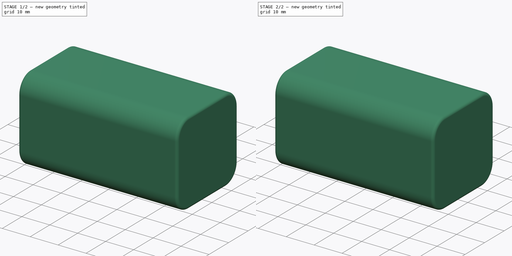
[diagram: build sequence overview — one tinted view per stage of 2, left to right]
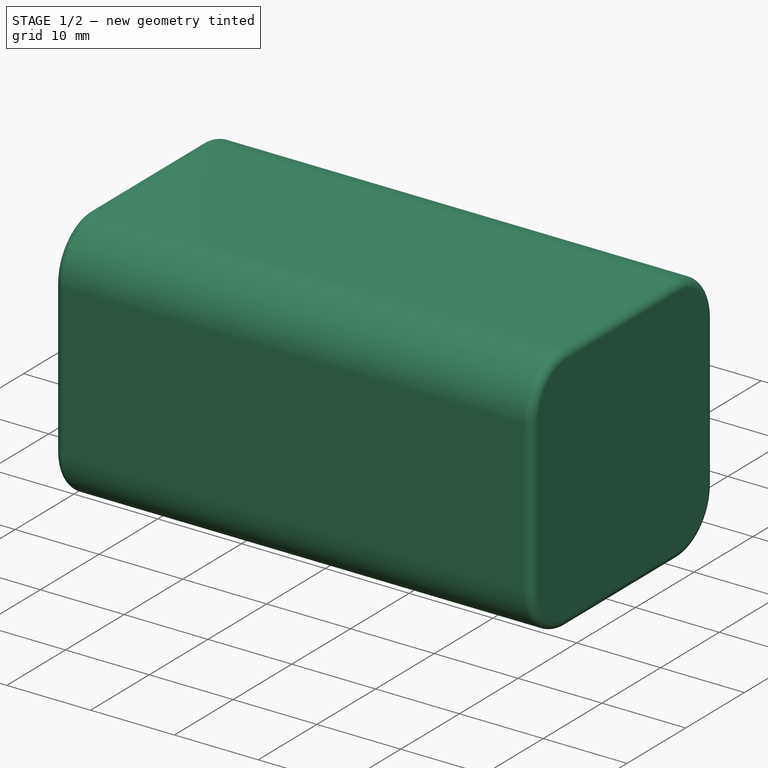
[diagram: stage 1 of 2 — iso view after this stage's code; geometry added in this stage tinted green]
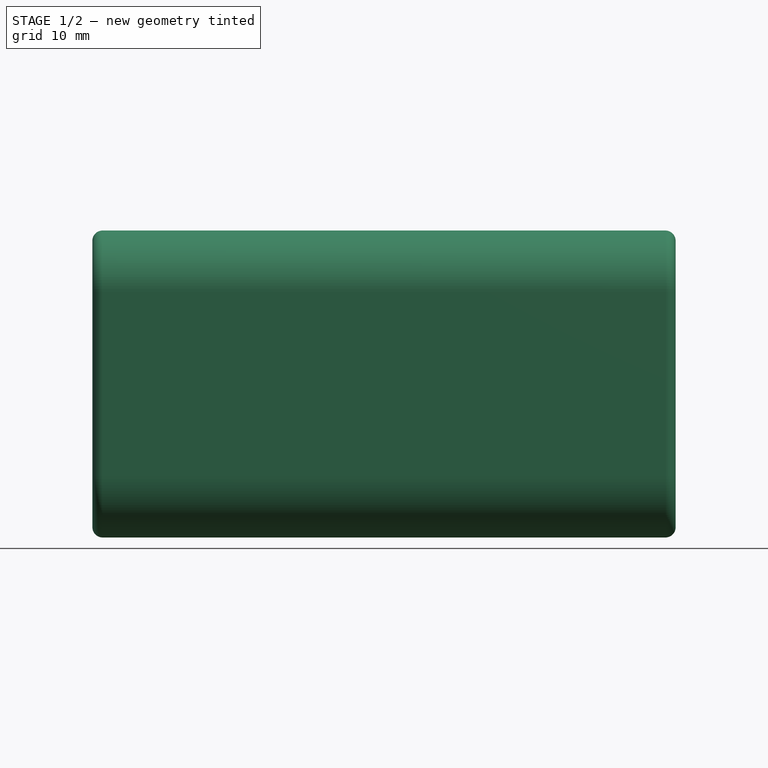
[diagram: stage 1 of 2 — front view after this stage's code; geometry added in this stage tinted green]
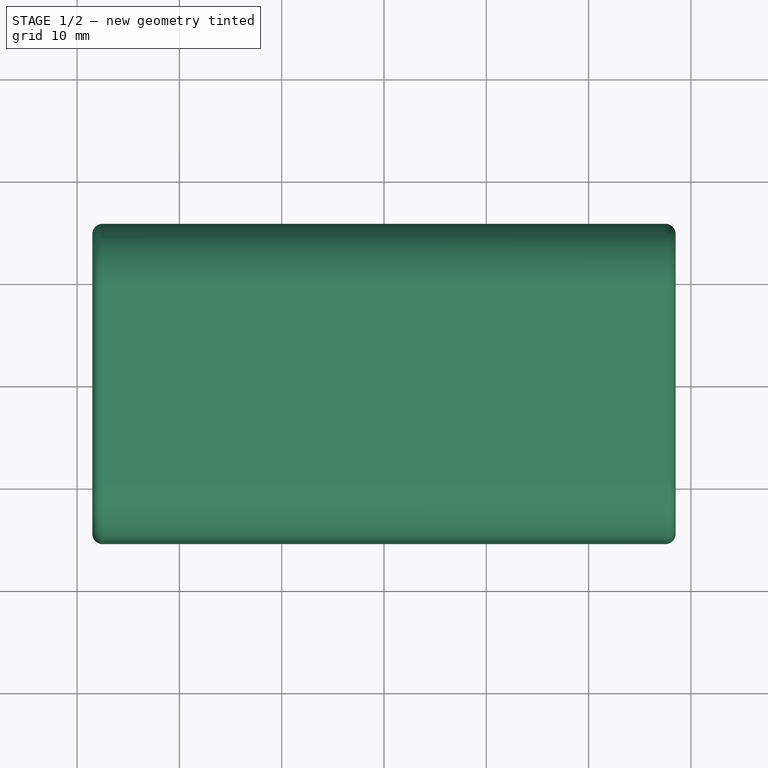
[diagram: stage 1 of 2 — top view after this stage's code; geometry added in this stage tinted green]
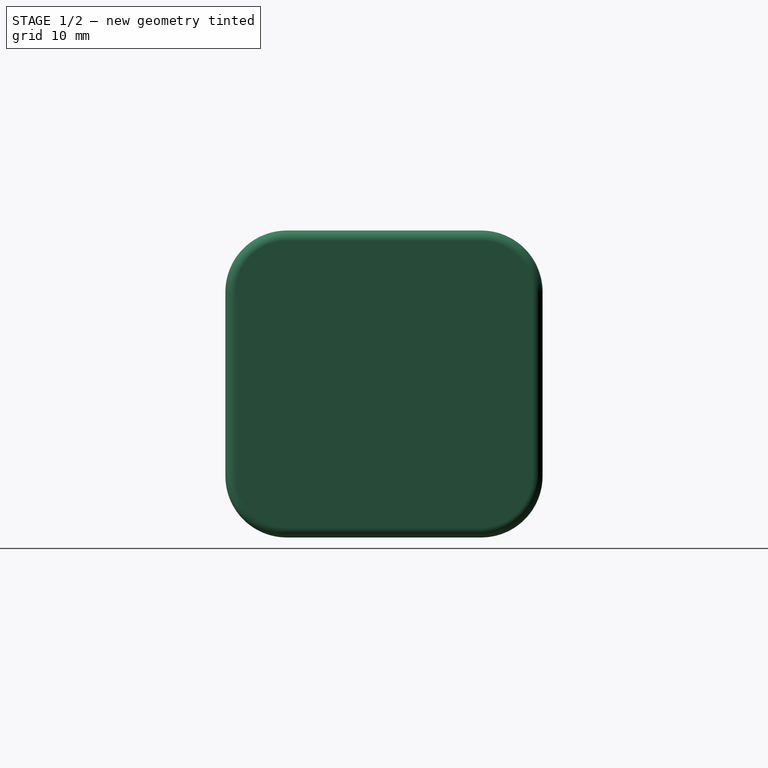
[diagram: stage 1 of 2 — right view after this stage's code; geometry added in this stage tinted green]
FCSTD DOCUMENT  (FreeCAD 0.14R3692 (Git))
Label: battery
License: The MIT License
LicenseURL: http://opensource.org/licenses/MIT
objects: Sketcher::SketchObject×1, PartDesign::Pad×1, Part::Fillet×1, Part::FeaturePython×1
note: 5 computed .brp shape members not serialized (recipe doc carries the construction recipe); baked Part::Feature solids carry a one-line shape summary decoded from their .brp

FEATURE [Sketcher::SketchObject] Sketch  label="battery-sketch"
  Placement = pos=(0,0,0) rot=(0.57735,0.57735,0.57735;2.0944rad)
  sketch-geometry (8):
    g0: LineSegment StartX=9.5 StartY=-15 StartZ=0 EndX=-9.5 EndY=-15 EndZ=0
    g1: LineSegment StartX=-15.5 StartY=-9 StartZ=0 EndX=-15.5 EndY=9 EndZ=0
    g2: LineSegment StartX=-9.5 StartY=15 StartZ=0 EndX=9.5 EndY=15 EndZ=0
    g3: LineSegment StartX=15.5 StartY=9 StartZ=0 EndX=15.5 EndY=-9 EndZ=0
    g4: ArcOfCircle CenterX=9.5 CenterY=9 CenterZ=0 NormalX=0 NormalY=0 NormalZ=1 Radius=6 StartAngle=0 EndAngle=1.5708
    g5: ArcOfCircle CenterX=-9.5 CenterY=9 CenterZ=0 NormalX=0 NormalY=0 NormalZ=1 Radius=6 StartAngle=1.5708 EndAngle=3.14159
    g6: ArcOfCircle CenterX=-9.5 CenterY=-9 CenterZ=0 NormalX=0 NormalY=0 NormalZ=1 Radius=6 StartAngle=3.14159 EndAngle=4.71239
    g7: ArcOfCircle CenterX=9.5 CenterY=-9 CenterZ=0 NormalX=0 NormalY=0 NormalZ=1 Radius=6 StartAngle=4.71239 EndAngle=6.28319
  constraints (19):
    c: Horizontal(g0)
    c: Horizontal(g2)
    c: Vertical(g1)
    c: Vertical(g3)
    c: Tangent(g2,g4)
    c: Tangent(g3,g4)
    c: Tangent(g2,g5)
    c: Tangent(g1,g5)
    c: Tangent(g1,g6)
    c: Tangent(g0,g6)
    c: Tangent(g3,g7)
    c: Tangent(g0,g7)
    c: Equal(g5,g4)
    c: Equal(g4,g7)
    c: Equal(g7,g6)
    c: Radius(g7) = 6
    c: DistanceY(g2,g0) = -30
    c: DistanceX(g1,g3) = 31
    c: Symmetric(g6,g4,g-1)
FEATURE [PartDesign::Pad] Pad  label="battery-pad"
  Length = 57
  Length2 = 100
  Midplane = true
  Placement = pos=(0,0,0) rot=(0.57735,0.57735,0.57735;2.0944rad)
  Sketch = -> Sketch
  Type = 0
FEATURE [Part::Fillet] Fillet  label="battery-fillet"
  Base = -> Pad
  Edges = 16 edges r=1: [Edge3,Edge4,Edge6,Edge7,Edge9,Edge10,Edge12,Edge13,Edge15,Edge16,Edge18,Edge19,Edge21,Edge22,Edge23,Edge24]
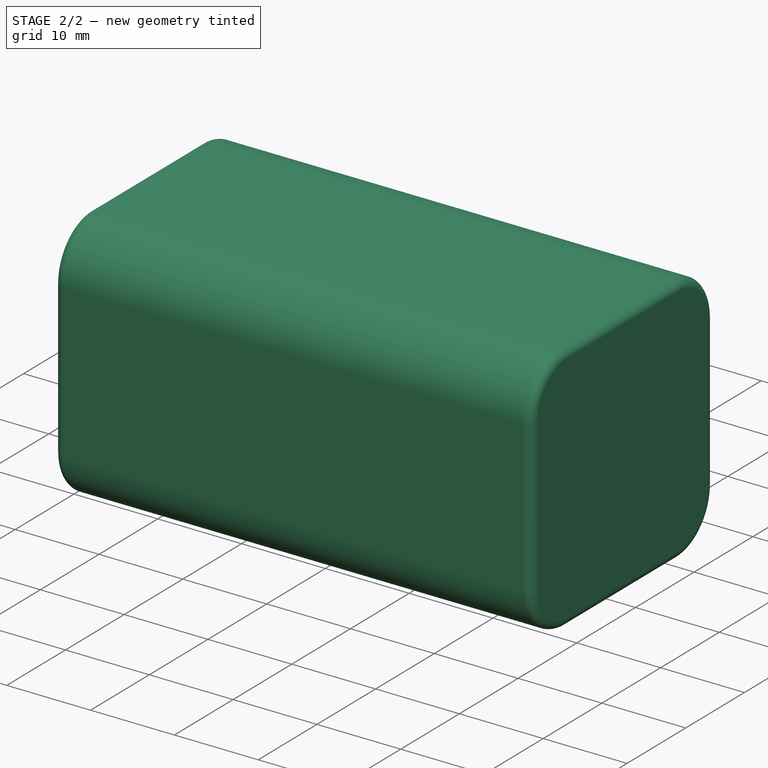
[diagram: stage 2 of 2 — iso view after this stage's code; geometry added in this stage tinted green]
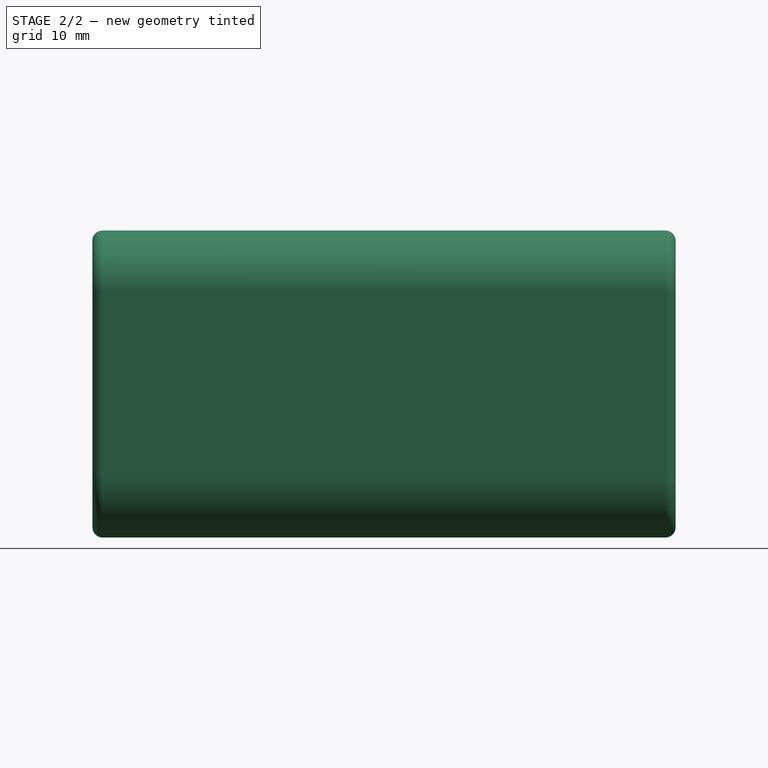
[diagram: stage 2 of 2 — front view after this stage's code; geometry added in this stage tinted green]
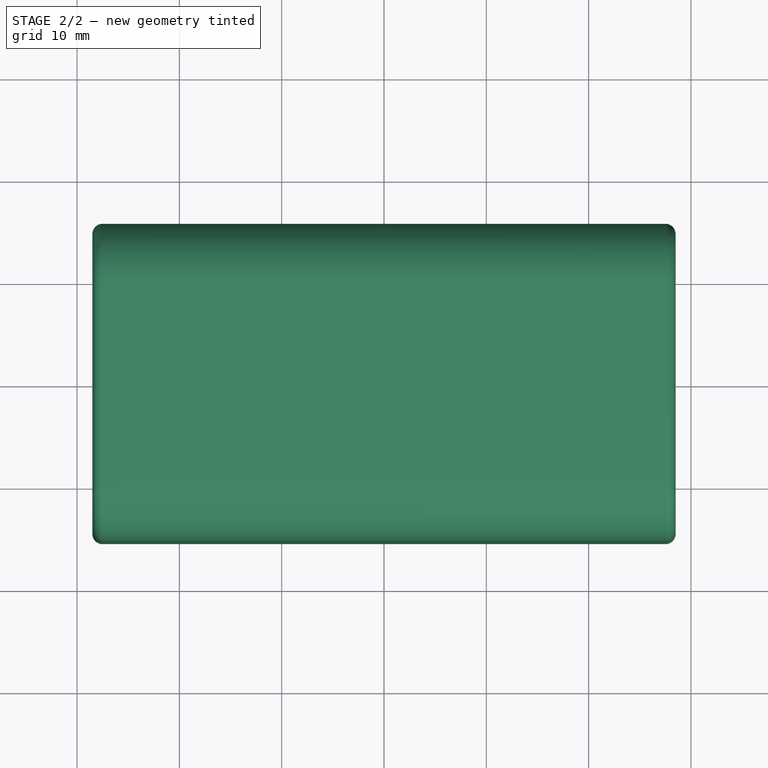
[diagram: stage 2 of 2 — top view after this stage's code; geometry added in this stage tinted green]
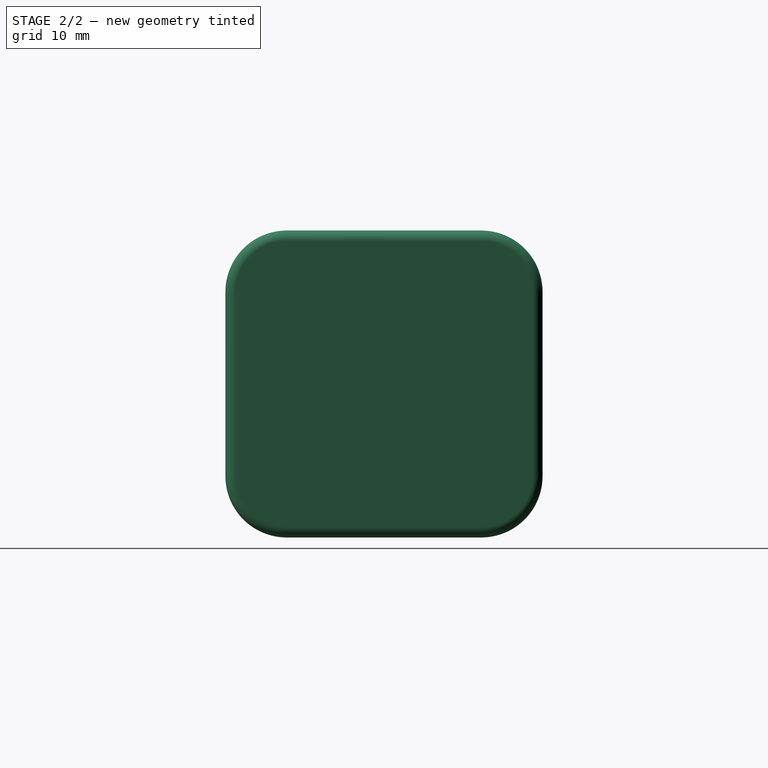
[diagram: stage 2 of 2 — right view after this stage's code; geometry added in this stage tinted green]
FEATURE [Part::FeaturePython] Clone  label="battery"  # Draft clone (typed FeaturePython)
  Objects = -> [Fillet]
  Scale = (1,1,1)
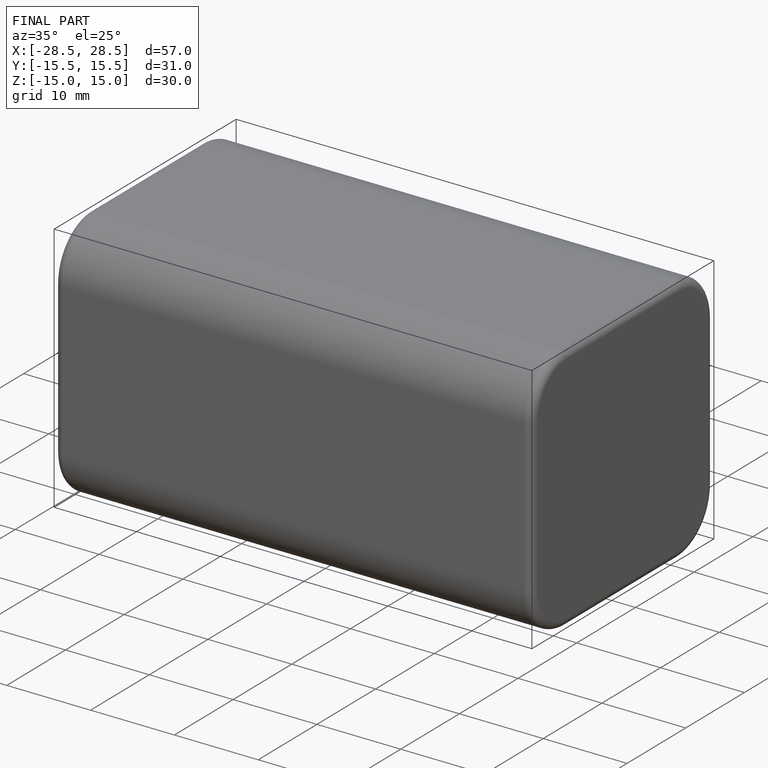
[diagram: finished part — iso view with bounding-box wireframe]
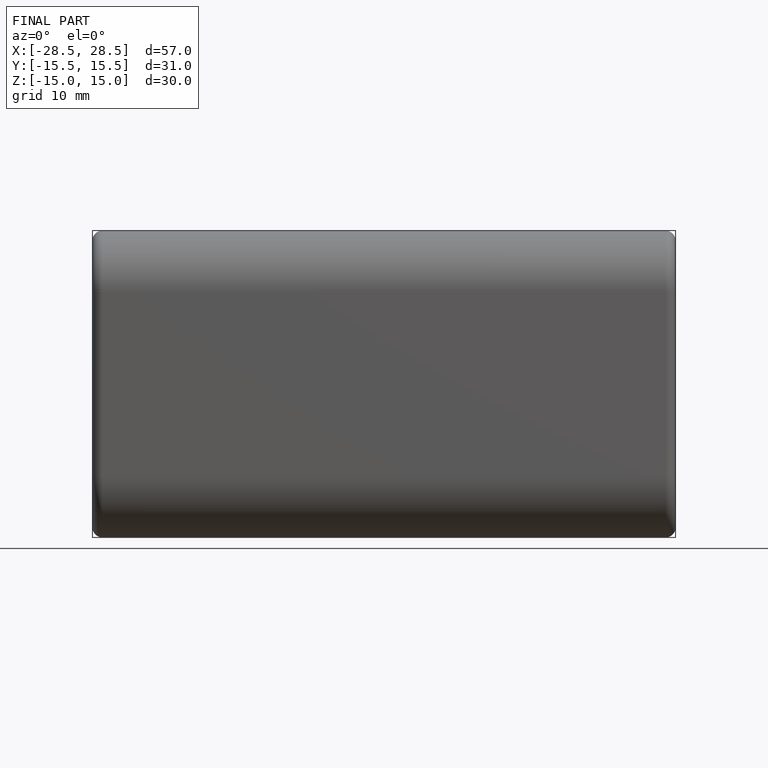
[diagram: finished part — front view with bounding-box wireframe]
